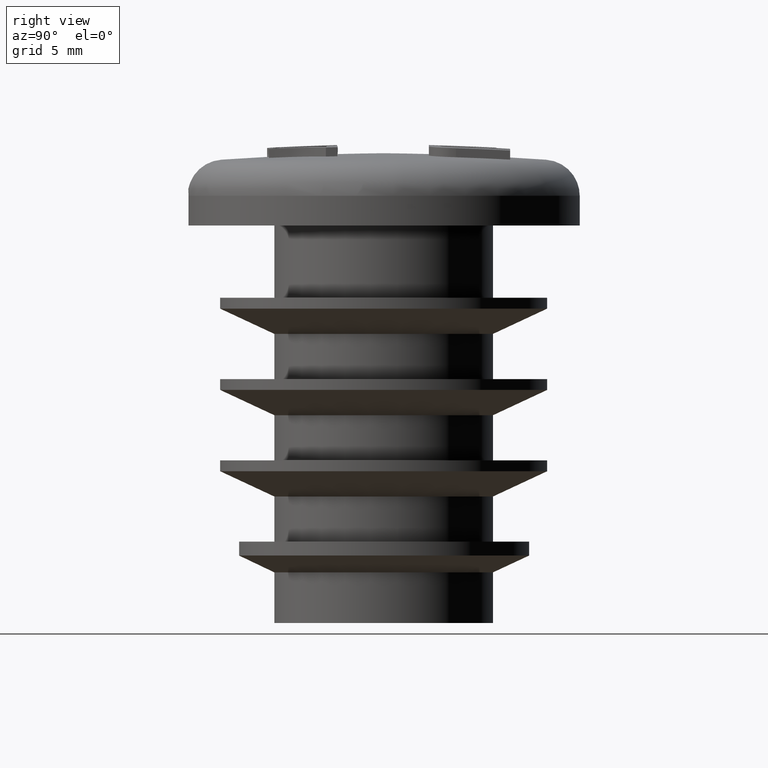
[diagram: clean part render]
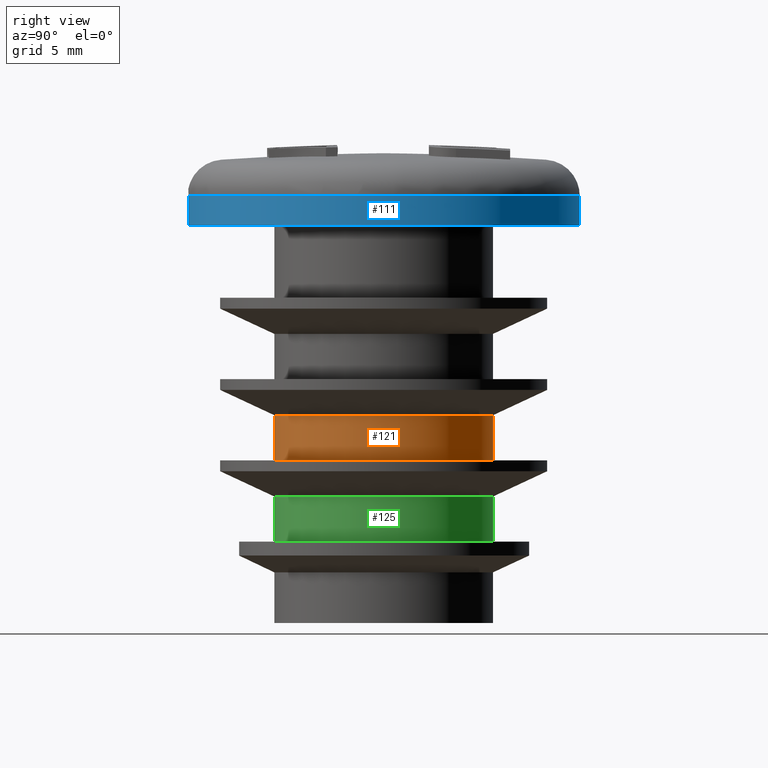
[diagram: same view with three faces highlighted in distinct colors, each labeled with its STEP entity id]
A machine part, right view with three faces highlighted in distinct colors.
Their STEP definitions:

[orange] entity #121 — the highlighted cylindrical surface (bore or boss wall) has radius 6.05 mm, axis along (0, 0, 1).
#121 = ADVANCED_FACE( '', ( #272, #273 ), #274, .T. );
#272 = FACE_OUTER_BOUND( '', #638, .T. );
#273 = FACE_OUTER_BOUND( '', #639, .T. );
#274 = CYLINDRICAL_SURFACE( '', #640, 6.05000000000000 );
#638 = EDGE_LOOP( '', ( #1134 ) );
#639 = EDGE_LOOP( '', ( #1135 ) );
#640 = AXIS2_PLACEMENT_3D( '', #1136, #1137, #1138 );
#1134 = ORIENTED_EDGE( '', *, *, #1528, .F. );
#1135 = ORIENTED_EDGE( '', *, *, #1527, .T. );
#1136 = CARTESIAN_POINT( '', ( 0.000000000000000, 0.000000000000000, 22.0000000000000 ) );
#1137 = DIRECTION( '', ( 0.000000000000000, 6.12303176911189E-017, 1.00000000000000 ) );
#1138 = DIRECTION( '', ( 0.000000000000000, 1.00000000000000, -6.12303176911189E-017 ) );
#1527 = EDGE_CURVE( '', #1792, #1792, #1793, .T. );
#1528 = EDGE_CURVE( '', #1794, #1794, #1795, .T. );
#1792 = VERTEX_POINT( '', #2600 );
#1793 = CIRCLE( '', #2601, 6.05000000000000 );
#1794 = VERTEX_POINT( '', #2602 );
#1795 = CIRCLE( '', #2603, 6.05000000000000 );
#2600 = CARTESIAN_POINT( '', ( 0.000000000000000, 6.05000000000000, 11.5000000000000 ) );
#2601 = AXIS2_PLACEMENT_3D( '', #2907, #2908, #2909 );
#2602 = CARTESIAN_POINT( '', ( 0.000000000000000, 6.05000000000000, 9.00000000000000 ) );
#2603 = AXIS2_PLACEMENT_3D( '', #2910, #2911, #2912 );
#2907 = CARTESIAN_POINT( '', ( 0.000000000000000, -6.42918335756747E-016, 11.5000000000000 ) );
#2908 = DIRECTION( '', ( 0.000000000000000, -6.12303176911189E-017, -1.00000000000000 ) );
#2909 = DIRECTION( '', ( 0.000000000000000, 1.00000000000000, -6.12303176911189E-017 ) );
#2910 = CARTESIAN_POINT( '', ( 0.000000000000000, -7.95994129984545E-016, 9.00000000000000 ) );
#2911 = DIRECTION( '', ( 0.000000000000000, -6.12303176911189E-017, -1.00000000000000 ) );
#2912 = DIRECTION( '', ( 0.000000000000000, 1.00000000000000, -6.12303176911189E-017 ) );

[blue] entity #111 — the highlighted cylindrical surface (bore or boss wall) has radius 10.85 mm, axis along (0, 0, 1).
#111 = ADVANCED_FACE( '', ( #242, #243 ), #244, .T. );
#242 = FACE_OUTER_BOUND( '', #608, .T. );
#243 = FACE_OUTER_BOUND( '', #609, .T. );
#244 = CYLINDRICAL_SURFACE( '', #610, 10.8500000000000 );
#608 = EDGE_LOOP( '', ( #1084 ) );
#609 = EDGE_LOOP( '', ( #1085 ) );
#610 = AXIS2_PLACEMENT_3D( '', #1086, #1087, #1088 );
#1084 = ORIENTED_EDGE( '', *, *, #1518, .F. );
#1085 = ORIENTED_EDGE( '', *, *, #1517, .T. );
#1086 = CARTESIAN_POINT( '', ( 0.000000000000000, 0.000000000000000, 22.0000000000000 ) );
#1087 = DIRECTION( '', ( 0.000000000000000, 6.12303176911189E-017, 1.00000000000000 ) );
#1088 = DIRECTION( '', ( 0.000000000000000, 1.00000000000000, -6.12303176911189E-017 ) );
#1517 = EDGE_CURVE( '', #1772, #1772, #1773, .T. );
#1518 = EDGE_CURVE( '', #1774, #1774, #1775, .T. );
#1772 = VERTEX_POINT( '', #2580 );
#1773 = CIRCLE( '', #2581, 10.8500000000000 );
#1774 = VERTEX_POINT( '', #2582 );
#1775 = CIRCLE( '', #2583, 10.8500000000000 );
#2580 = CARTESIAN_POINT( '', ( 0.000000000000000, 10.8500000000000, 23.6466235476129 ) );
#2581 = AXIS2_PLACEMENT_3D( '', #2877, #2878, #2879 );
#2582 = CARTESIAN_POINT( '', ( 0.000000000000000, 10.8500000000000, 22.0000000000000 ) );
#2583 = AXIS2_PLACEMENT_3D( '', #2880, #2881, #2882 );
#2877 = CARTESIAN_POINT( '', ( 0.000000000000000, 1.00823282938018E-016, 23.6466235476129 ) );
#2878 = DIRECTION( '', ( 0.000000000000000, -6.12303176911189E-017, -1.00000000000000 ) );
#2879 = DIRECTION( '', ( 0.000000000000000, 1.00000000000000, -6.12303176911189E-017 ) );
#2880 = CARTESIAN_POINT( '', ( 0.000000000000000, -1.32772086925377E-031, 22.0000000000000 ) );
#2881 = DIRECTION( '', ( 0.000000000000000, -6.12303176911189E-017, -1.00000000000000 ) );
#2882 = DIRECTION( '', ( 0.000000000000000, 1.00000000000000, -6.12303176911189E-017 ) );

[green] entity #125 — the highlighted cylindrical surface (bore or boss wall) has radius 6.05 mm, axis along (0, 0, 1).
#125 = ADVANCED_FACE( '', ( #284, #285 ), #286, .T. );
#284 = FACE_OUTER_BOUND( '', #650, .T. );
#285 = FACE_OUTER_BOUND( '', #651, .T. );
#286 = CYLINDRICAL_SURFACE( '', #652, 6.05000000000000 );
#650 = EDGE_LOOP( '', ( #1154 ) );
#651 = EDGE_LOOP( '', ( #1155 ) );
#652 = AXIS2_PLACEMENT_3D( '', #1156, #1157, #1158 );
#1154 = ORIENTED_EDGE( '', *, *, #1532, .F. );
#1155 = ORIENTED_EDGE( '', *, *, #1531, .T. );
#1156 = CARTESIAN_POINT( '', ( 0.000000000000000, 0.000000000000000, 22.0000000000000 ) );
#1157 = DIRECTION( '', ( 0.000000000000000, 6.12303176911189E-017, 1.00000000000000 ) );
#1158 = DIRECTION( '', ( 0.000000000000000, 1.00000000000000, -6.12303176911189E-017 ) );
#1531 = EDGE_CURVE( '', #1800, #1800, #1801, .T. );
#1532 = EDGE_CURVE( '', #1802, #1802, #1803, .T. );
#1800 = VERTEX_POINT( '', #2608 );
#1801 = CIRCLE( '', #2609, 6.05000000000000 );
#1802 = VERTEX_POINT( '', #2610 );
#1803 = CIRCLE( '', #2611, 6.05000000000000 );
#2608 = CARTESIAN_POINT( '', ( 0.000000000000000, 6.05000000000000, 7.00000000000001 ) );
#2609 = AXIS2_PLACEMENT_3D( '', #2919, #2920, #2921 );
#2610 = CARTESIAN_POINT( '', ( 0.000000000000000, 6.05000000000000, 4.49999999999999 ) );
#2611 = AXIS2_PLACEMENT_3D( '', #2922, #2923, #2924 );
#2919 = CARTESIAN_POINT( '', ( 0.000000000000000, -9.18454765366782E-016, 7.00000000000001 ) );
#2920 = DIRECTION( '', ( 0.000000000000000, -6.12303176911189E-017, -1.00000000000000 ) );
#2921 = DIRECTION( '', ( 0.000000000000000, 1.00000000000000, -6.12303176911189E-017 ) );
#2922 = CARTESIAN_POINT( '', ( 0.000000000000000, -1.07153055959458E-015, 4.49999999999999 ) );
#2923 = DIRECTION( '', ( 0.000000000000000, -6.12303176911189E-017, -1.00000000000000 ) );
#2924 = DIRECTION( '', ( 0.000000000000000, 1.00000000000000, -6.12303176911189E-017 ) );